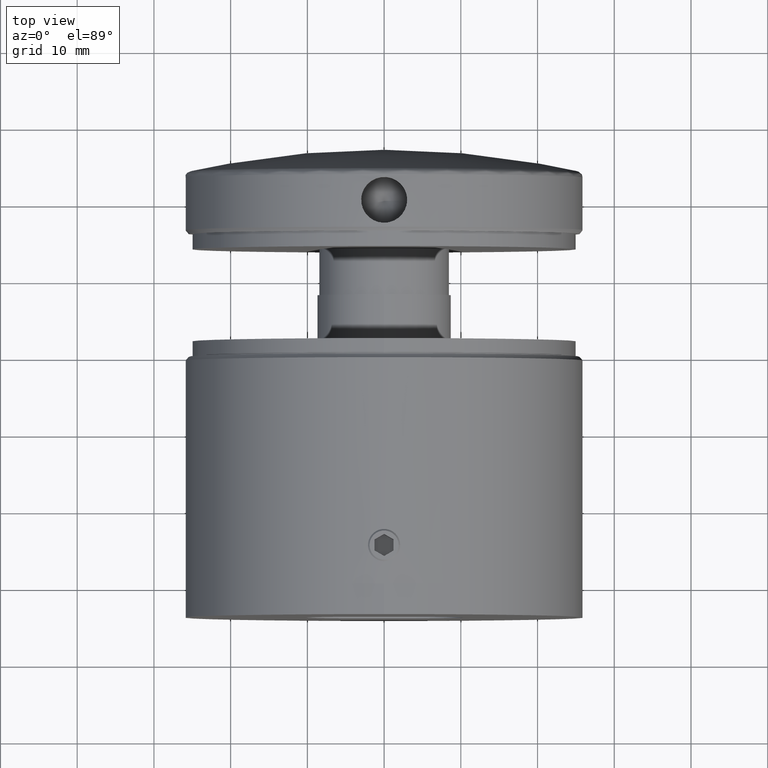
[diagram: clean part render]
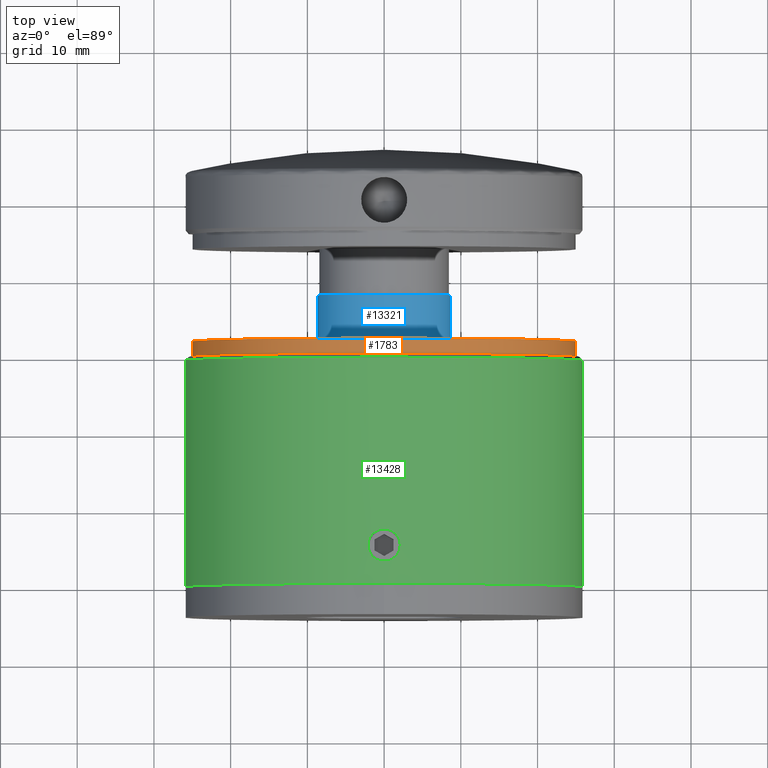
[diagram: same view with three faces highlighted in distinct colors, each labeled with its STEP entity id]
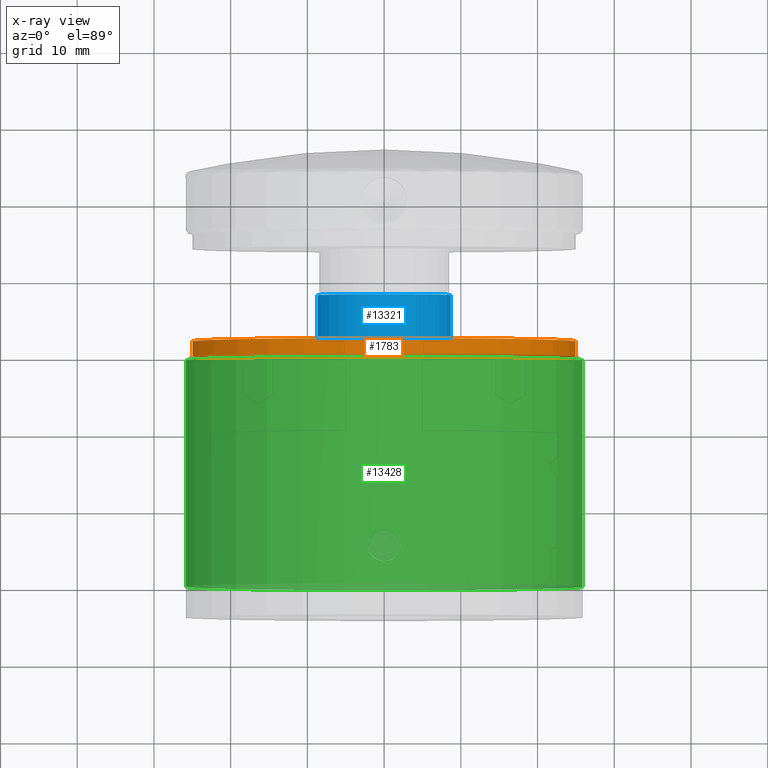
[diagram: x-ray of the same camera — body ghosted, the three highlighted faces saturated]
A machine part, top view with three faces highlighted in distinct colors.
The next image is the same camera in x-ray (body ghosted, the three faces saturated) — at least one of them is partly hidden behind the body in this view.
Their STEP definitions:

[orange] entity #1783 — the highlighted cylindrical surface (bore or boss wall) has radius 25 mm, axis along (-0, -1, -0).
#20 = EDGE_CURVE ( 'NONE', #11111, #11111, #4525, .T. ) ;
#602 = DIRECTION ( 'NONE',  ( 0.0000000000000000000, 0.0000000000000000000, 1.000000000000000000 ) ) ;
#1558 = DIRECTION ( 'NONE',  ( 0.0000000000000000000, 1.000000000000000000, 0.0000000000000000000 ) ) ;
#1783 = ADVANCED_FACE ( 'NONE', ( #12047, #7787 ), #2766, .T. ) ;
#2622 = CARTESIAN_POINT ( 'NONE',  ( 0.0000000000000000000, 0.0000000000000000000, 25.00000000000000000 ) ) ;
#2753 = ORIENTED_EDGE ( 'NONE', *, *, #15160, .F. ) ;
#2766 = CYLINDRICAL_SURFACE ( 'NONE', #7396, 25.00000000000000000 ) ;
#4525 = CIRCLE ( 'NONE', #15028, 25.00000000000000000 ) ;
#6125 = CARTESIAN_POINT ( 'NONE',  ( 0.0000000000000000000, 2.000000000000000000, 25.00000000000000000 ) ) ;
#6635 = EDGE_LOOP ( 'NONE', ( #2753 ) ) ;
#7396 = AXIS2_PLACEMENT_3D ( 'NONE', #9594, #17663, #11128 ) ;
#7787 = FACE_OUTER_BOUND ( 'NONE', #20646, .T. ) ;
#7813 = VERTEX_POINT ( 'NONE', #6125 ) ;
#9337 = DIRECTION ( 'NONE',  ( 0.0000000000000000000, 0.0000000000000000000, 1.000000000000000000 ) ) ;
#9594 = CARTESIAN_POINT ( 'NONE',  ( 0.0000000000000000000, 2.000000000000000000, 0.0000000000000000000 ) ) ;
#10103 = AXIS2_PLACEMENT_3D ( 'NONE', #14990, #11872, #602 ) ;
#10581 = ORIENTED_EDGE ( 'NONE', *, *, #20, .T. ) ;
#11111 = VERTEX_POINT ( 'NONE', #2622 ) ;
#11128 = DIRECTION ( 'NONE',  ( 0.0000000000000000000, 0.0000000000000000000, -1.000000000000000000 ) ) ;
#11872 = DIRECTION ( 'NONE',  ( 0.0000000000000000000, 1.000000000000000000, 0.0000000000000000000 ) ) ;
#12047 = FACE_OUTER_BOUND ( 'NONE', #6635, .T. ) ;
#14977 = CIRCLE ( 'NONE', #10103, 25.00000000000000000 ) ;
#14990 = CARTESIAN_POINT ( 'NONE',  ( 0.0000000000000000000, 2.000000000000000000, 0.0000000000000000000 ) ) ;
#15028 = AXIS2_PLACEMENT_3D ( 'NONE', #17495, #1558, #9337 ) ;
#15160 = EDGE_CURVE ( 'NONE', #7813, #7813, #14977, .T. ) ;
#17495 = CARTESIAN_POINT ( 'NONE',  ( 0.0000000000000000000, 0.0000000000000000000, 0.0000000000000000000 ) ) ;
#17663 = DIRECTION ( 'NONE',  ( -0.0000000000000000000, -1.000000000000000000, -0.0000000000000000000 ) ) ;
#20646 = EDGE_LOOP ( 'NONE', ( #10581 ) ) ;

[blue] entity #13321 — the highlighted cylindrical surface (bore or boss wall) has radius 8.75 mm, axis along (-0, -1, -0).
#2715 = EDGE_LOOP ( 'NONE', ( #17696 ) ) ;
#3037 = CARTESIAN_POINT ( 'NONE',  ( 0.0000000000000000000, 3.000000000000000000, 0.0000000000000000000 ) ) ;
#3510 = EDGE_CURVE ( 'NONE', #12096, #12096, #12838, .T. ) ;
#4428 = DIRECTION ( 'NONE',  ( 0.0000000000000000000, 0.0000000000000000000, -1.000000000000000000 ) ) ;
#4880 = AXIS2_PLACEMENT_3D ( 'NONE', #7899, #14056, #14264 ) ;
#5761 = CARTESIAN_POINT ( 'NONE',  ( 0.0000000000000000000, 3.000000000000000000, 0.0000000000000000000 ) ) ;
#6152 = CIRCLE ( 'NONE', #4880, 8.749999999999998200 ) ;
#7899 = CARTESIAN_POINT ( 'NONE',  ( 0.0000000000000000000, -3.000000000000000000, 0.0000000000000000000 ) ) ;
#9053 = ORIENTED_EDGE ( 'NONE', *, *, #13902, .T. ) ;
#9153 = FACE_OUTER_BOUND ( 'NONE', #2715, .T. ) ;
#9440 = FACE_OUTER_BOUND ( 'NONE', #11242, .T. ) ;
#11242 = EDGE_LOOP ( 'NONE', ( #9053 ) ) ;
#11597 = VERTEX_POINT ( 'NONE', #19085 ) ;
#12096 = VERTEX_POINT ( 'NONE', #17245 ) ;
#12838 = CIRCLE ( 'NONE', #20653, 8.749999999999998200 ) ;
#13321 = ADVANCED_FACE ( 'NONE', ( #9153, #9440 ), #19165, .T. ) ;
#13902 = EDGE_CURVE ( 'NONE', #11597, #11597, #6152, .T. ) ;
#14056 = DIRECTION ( 'NONE',  ( 0.0000000000000000000, 1.000000000000000000, 0.0000000000000000000 ) ) ;
#14264 = DIRECTION ( 'NONE',  ( 0.0000000000000000000, 0.0000000000000000000, 1.000000000000000000 ) ) ;
#15192 = DIRECTION ( 'NONE',  ( 0.0000000000000000000, 0.0000000000000000000, 1.000000000000000000 ) ) ;
#16940 = DIRECTION ( 'NONE',  ( 0.0000000000000000000, 1.000000000000000000, 0.0000000000000000000 ) ) ;
#17245 = CARTESIAN_POINT ( 'NONE',  ( 0.0000000000000000000, 3.000000000000000000, 8.749999999999998200 ) ) ;
#17696 = ORIENTED_EDGE ( 'NONE', *, *, #3510, .F. ) ;
#18096 = AXIS2_PLACEMENT_3D ( 'NONE', #3037, #18761, #4428 ) ;
#18761 = DIRECTION ( 'NONE',  ( -0.0000000000000000000, -1.000000000000000000, -0.0000000000000000000 ) ) ;
#19085 = CARTESIAN_POINT ( 'NONE',  ( 0.0000000000000000000, -3.000000000000000000, 8.749999999999998200 ) ) ;
#19165 = CYLINDRICAL_SURFACE ( 'NONE', #18096, 8.749999999999998200 ) ;
#20653 = AXIS2_PLACEMENT_3D ( 'NONE', #5761, #16940, #15192 ) ;

[green] entity #13428 — the highlighted cylindrical surface (bore or boss wall) has radius 26 mm, axis along (-0, -1, -0).
#5 = CARTESIAN_POINT ( 'NONE',  ( -1.669243227214097600, 6.281535307795066600, 25.94647256345069800 ) ) ;
#17 = CARTESIAN_POINT ( 'NONE',  ( 0.0000000000000000000, 0.0000000000000000000, -25.99999999999999600 ) ) ;
#436 = DIRECTION ( 'NONE',  ( 0.0000000000000000000, 0.0000000000000000000, -1.000000000000000000 ) ) ;
#627 = DIRECTION ( 'NONE',  ( 0.0000000000000000000, 0.0000000000000000000, -1.000000000000000000 ) ) ;
#1032 = CARTESIAN_POINT ( 'NONE',  ( -0.5444280021912952800, 7.032844422819789700, 25.99464835345537800 ) ) ;
#1098 = CARTESIAN_POINT ( 'NONE',  ( 1.291111679411652800, 6.678699199965065800, 25.96864765088966800 ) ) ;
#1142 = CYLINDRICAL_SURFACE ( 'NONE', #17460, 25.99999999999999600 ) ;
#1166 = CARTESIAN_POINT ( 'NONE',  ( 1.581614341408797300, 6.388252919398745200, 25.95203081882499400 ) ) ;
#1314 = CARTESIAN_POINT ( 'NONE',  ( 1.992599160042153800, 5.677120789452698300, 25.92358661074948100 ) ) ;
#1443 = CARTESIAN_POINT ( 'NONE',  ( 2.044160095852805400, 4.446624291572655700, 25.91973168983960500 ) ) ;
#1519 = CARTESIAN_POINT ( 'NONE',  ( -0.2770871598587642500, 2.913865256956097700, 25.99887005114377600 ) ) ;
#2587 = ORIENTED_EDGE ( 'NONE', *, *, #16479, .T. ) ;
#2618 = ORIENTED_EDGE ( 'NONE', *, *, #19408, .F. ) ;
#2683 = CARTESIAN_POINT ( 'NONE',  ( -0.1358780624334420800, 7.100073830543624200, 26.00000596323533500 ) ) ;
#2906 = CARTESIAN_POINT ( 'NONE',  ( 0.5515874303148203800, 7.044642474720950200, 25.99537749868886000 ) ) ;
#2915 = CARTESIAN_POINT ( 'NONE',  ( 2.099999999999997000, 4.999999999999999100, 25.91505354036529600 ) ) ;
#2984 = CARTESIAN_POINT ( 'NONE',  ( 0.2734311670305149000, 2.913385292999100900, 25.99890881711472400 ) ) ;
#3055 = CARTESIAN_POINT ( 'NONE',  ( -1.389649238057018200, 3.419615088910952200, 25.96301712609206500 ) ) ;
#3119 = CARTESIAN_POINT ( 'NONE',  ( 1.821263503757339700, 3.945471368024777300, 25.93624731154056600 ) ) ;
#3190 = CARTESIAN_POINT ( 'NONE',  ( -2.100099286971191900, 4.726618426426298900, 25.91504549474712600 ) ) ;
#3260 = CARTESIAN_POINT ( 'NONE',  ( -2.045140482374243200, 4.450242645582057400, 25.91965260217380900 ) ) ;
#3763 = DIRECTION ( 'NONE',  ( -0.0000000000000000000, -1.000000000000000000, -0.0000000000000000000 ) ) ;
#3830 = CARTESIAN_POINT ( 'NONE',  ( 0.0000000000000000000, 0.0000000000000000000, 0.0000000000000000000 ) ) ;
#4314 = CARTESIAN_POINT ( 'NONE',  ( -0.9296740769087523700, 6.888025485988405800, 25.98368508371377700 ) ) ;
#4533 = CARTESIAN_POINT ( 'NONE',  ( -0.2750556725704311200, 7.086433002506038500, 25.99889400044466500 ) ) ;
#4595 = CARTESIAN_POINT ( 'NONE',  ( -1.836053107001190300, 3.944660372366392200, 25.93530218829718900 ) ) ;
#4666 = CARTESIAN_POINT ( 'NONE',  ( -1.053565934561727400, 3.178231502175824700, 25.97889608089622000 ) ) ;
#4736 = CARTESIAN_POINT ( 'NONE',  ( 1.050418834901880400, 3.176423634196027000, 25.97902369779784200 ) ) ;
#4812 = CARTESIAN_POINT ( 'NONE',  ( 0.9297566643219388200, 3.112005147232632200, 25.98368275802765500 ) ) ;
#5151 = FACE_OUTER_BOUND ( 'NONE', #16045, .T. ) ;
#5554 = VERTEX_POINT ( 'NONE', #19148 ) ;
#6194 = CARTESIAN_POINT ( 'NONE',  ( -2.099950149348869000, 5.137833215250493500, 25.91505757996182900 ) ) ;
#6271 = CARTESIAN_POINT ( 'NONE',  ( -1.821364900916784900, 6.054199029801260700, 25.93623799503714300 ) ) ;
#6335 = CARTESIAN_POINT ( 'NONE',  ( -1.582305965105272400, 6.387632585860130200, 25.95199330139241700 ) ) ;
#6651 = FACE_OUTER_BOUND ( 'NONE', #8281, .T. ) ;
#7318 = EDGE_LOOP ( 'NONE', ( #14197 ) ) ;
#7561 = VERTEX_POINT ( 'NONE', #2915 ) ;
#7740 = CARTESIAN_POINT ( 'NONE',  ( 1.822668037246453000, 6.052002593627194400, 25.93614684694555500 ) ) ;
#7814 = CARTESIAN_POINT ( 'NONE',  ( 1.667657756521175000, 3.716275343818325400, 25.94657670989814900 ) ) ;
#7946 = CARTESIAN_POINT ( 'NONE',  ( -1.281745290530080100, 3.330877281822141700, 25.96863823481467300 ) ) ;
#8281 = EDGE_LOOP ( 'NONE', ( #2618 ) ) ;
#8906 = AXIS2_PLACEMENT_3D ( 'NONE', #19760, #3763, #13277 ) ;
#9678 = FACE_BOUND ( 'NONE', #7318, .T. ) ;
#9862 = AXIS2_PLACEMENT_3D ( 'NONE', #3830, #15081, #627 ) ;
#10058 = VERTEX_POINT ( 'NONE', #17 ) ;
#10629 = CIRCLE ( 'NONE', #8906, 25.99999999999999300 ) ;
#10683 = CARTESIAN_POINT ( 'NONE',  ( 2.086375087508013600, 5.275262616186469500, 25.91616784368428800 ) ) ;
#10914 = CARTESIAN_POINT ( 'NONE',  ( 2.033000561372071400, 5.543727166053645100, 25.92040943783972700 ) ) ;
#10980 = CARTESIAN_POINT ( 'NONE',  ( -0.9330401142055890800, 3.113639867592257600, 25.98356370839009700 ) ) ;
#11057 = CARTESIAN_POINT ( 'NONE',  ( 1.580685245242186900, 3.610684475793076900, 25.95208780489046400 ) ) ;
#11185 = CARTESIAN_POINT ( 'NONE',  ( 0.1365899693063367100, 2.899865480402195100, 26.00001086503926100 ) ) ;
#12305 = CARTESIAN_POINT ( 'NONE',  ( 0.2751650311658658300, 7.099851416639489300, 25.99998799903801900 ) ) ;
#12370 = CARTESIAN_POINT ( 'NONE',  ( 2.099999999999997000, 5.138796672859960800, 25.91505354036530000 ) ) ;
#12520 = CARTESIAN_POINT ( 'NONE',  ( 2.099999999999997400, 4.999999999999999100, 25.91505354036530300 ) ) ;
#12728 = CARTESIAN_POINT ( 'NONE',  ( -2.032362703583654000, 5.546201311504011000, 25.92045968014364000 ) ) ;
#12802 = CARTESIAN_POINT ( 'NONE',  ( -0.6790218126945848400, 3.008054272391163900, 25.99144236514335300 ) ) ;
#12869 = CARTESIAN_POINT ( 'NONE',  ( -2.086163109703135500, 5.277051459697118800, 25.91618512953988300 ) ) ;
#13277 = DIRECTION ( 'NONE',  ( 0.0000000000000000000, 0.0000000000000000000, -1.000000000000000000 ) ) ;
#13428 = ADVANCED_FACE ( 'NONE', ( #9678, #5151, #6651 ), #1142, .T. ) ;
#13892 = CARTESIAN_POINT ( 'NONE',  ( -0.6753593128673861500, 6.993194401843729800, 25.99153851193517200 ) ) ;
#13960 = CARTESIAN_POINT ( 'NONE',  ( 1.670277411755914700, 6.280234977953711900, 25.94640640643906700 ) ) ;
#14171 = CARTESIAN_POINT ( 'NONE',  ( -1.280108565136260700, 6.670340120567080300, 25.96871751581180000 ) ) ;
#14197 = ORIENTED_EDGE ( 'NONE', *, *, #14214, .F. ) ;
#14214 = EDGE_CURVE ( 'NONE', #7561, #7561, #19628, .T. ) ;
#14366 = CARTESIAN_POINT ( 'NONE',  ( -0.1406954558784135600, 2.900136526148288800, 25.99998897289323100 ) ) ;
#15081 = DIRECTION ( 'NONE',  ( -0.0000000000000000000, -1.000000000000000000, -0.0000000000000000000 ) ) ;
#15481 = CARTESIAN_POINT ( 'NONE',  ( -1.052589253394152300, 6.822297977980116300, 25.97893422021398300 ) ) ;
#15560 = CARTESIAN_POINT ( 'NONE',  ( 1.056914456920366600, 6.835141240740624000, 25.97973887134691000 ) ) ;
#15778 = CARTESIAN_POINT ( 'NONE',  ( -0.5455399143232699800, 2.967483908508076900, 25.99462266377991100 ) ) ;
#15910 = CARTESIAN_POINT ( 'NONE',  ( -1.386172949092684000, 6.583584830614483100, 25.96320806522044600 ) ) ;
#16045 = EDGE_LOOP ( 'NONE', ( #2587 ) ) ;
#16279 = DIRECTION ( 'NONE',  ( -0.0000000000000000000, -1.000000000000000000, -0.0000000000000000000 ) ) ;
#16479 = EDGE_CURVE ( 'NONE', #5554, #5554, #10629, .T. ) ;
#17380 = CARTESIAN_POINT ( 'NONE',  ( 0.5419072552833817900, 2.966514798370207400, 25.99469870589812000 ) ) ;
#17454 = CARTESIAN_POINT ( 'NONE',  ( -1.887148706429960100, 5.931464451664375300, 25.93147635339588000 ) ) ;
#17460 = AXIS2_PLACEMENT_3D ( 'NONE', #17886, #16279, #436 ) ;
#17528 = CARTESIAN_POINT ( 'NONE',  ( -1.992610389370325500, 5.677096818090381800, 25.92358578482312800 ) ) ;
#17591 = CARTESIAN_POINT ( 'NONE',  ( 0.6751850539863092400, 3.006737056532522000, 25.99154366842317300 ) ) ;
#17656 = CARTESIAN_POINT ( 'NONE',  ( 1.278680393590565100, 3.328537484212546400, 25.96878950722395300 ) ) ;
#17886 = CARTESIAN_POINT ( 'NONE',  ( 0.0000000000000000000, 20.00000000000000000, 0.0000000000000000000 ) ) ;
#18341 = CIRCLE ( 'NONE', #9862, 25.99999999999999600 ) ;
#19002 = CARTESIAN_POINT ( 'NONE',  ( 2.099999999999997900, 4.722406654280078400, 25.91505354036531000 ) ) ;
#19075 = CARTESIAN_POINT ( 'NONE',  ( 1.386813373150778100, 3.417119038468505300, 25.96316960514107200 ) ) ;
#19133 = CARTESIAN_POINT ( 'NONE',  ( 2.099999999999997400, 4.999999999999999100, 25.91505354036530300 ) ) ;
#19148 = CARTESIAN_POINT ( 'NONE',  ( 0.0000000000000000000, 29.50000000000000000, -25.99999999999999300 ) ) ;
#19408 = EDGE_CURVE ( 'NONE', #10058, #10058, #18341, .T. ) ;
#19628 = B_SPLINE_CURVE_WITH_KNOTS ( 'NONE', 3,
 ( #12520, #12370, #10683, #10914, #1314, #20371, #7740, #13960, #1166, #1098, #15560, #2906, #12305, #2683, #4533, #1032, #13892, #4314, #15481, #14171, #15910, #6335, #5, #6271, #17454, #17528, #12728, #12869, #6194, #3190, #3260, #4595, #20525, #3055, #7946, #4666, #10980, #12802, #15778, #1519, #14366, #11185, #2984, #17380, #17591, #4812, #4736, #17656, #19075, #11057, #7814, #3119, #20589, #1443, #19002, #19133 ),
 .UNSPECIFIED., .T., .F.,
 ( 4, 2, 2, 2, 2, 2, 2, 2, 2, 2, 2, 2, 2, 2, 2, 2, 2, 2, 2, 2, 2, 2, 2, 2, 2, 2, 2, 4 ),
 ( 0.0000000000000000000, 0.0004104668921315337500, 0.0008209337842630675000, 0.001231400676394601300, 0.001641867568526135000, 0.002462801352789200300, 0.003283735137052265700, 0.003694202029183798300, 0.004104668921315331000, 0.004515135813446864500, 0.004925602705578397200, 0.005336069597709930700, 0.005746536489841463400, 0.006157003381972996900, 0.006567470274104529600, 0.007388404058367594900, 0.008209337842630660300, 0.008619804734762193800, 0.009030271626893727300, 0.009440738519025257400, 0.009851205411156790900, 0.01026167230328832400, 0.01067213919541985500, 0.01108260608755138800, 0.01149307297968292000, 0.01190353987181445200, 0.01231400676394598500, 0.01313494054820905100 ),
 .UNSPECIFIED. ) ;
#19760 = CARTESIAN_POINT ( 'NONE',  ( 0.0000000000000000000, 29.50000000000000000, 0.0000000000000000000 ) ) ;
#20371 = CARTESIAN_POINT ( 'NONE',  ( 1.887173869133903700, 5.931406873373773300, 25.93147448498230600 ) ) ;
#20525 = CARTESIAN_POINT ( 'NONE',  ( -1.679776207148330200, 3.710303220900370100, 25.94640408750757000 ) ) ;
#20589 = CARTESIAN_POINT ( 'NONE',  ( 1.886697760890792200, 4.067757889768828700, 25.93150866998944400 ) ) ;